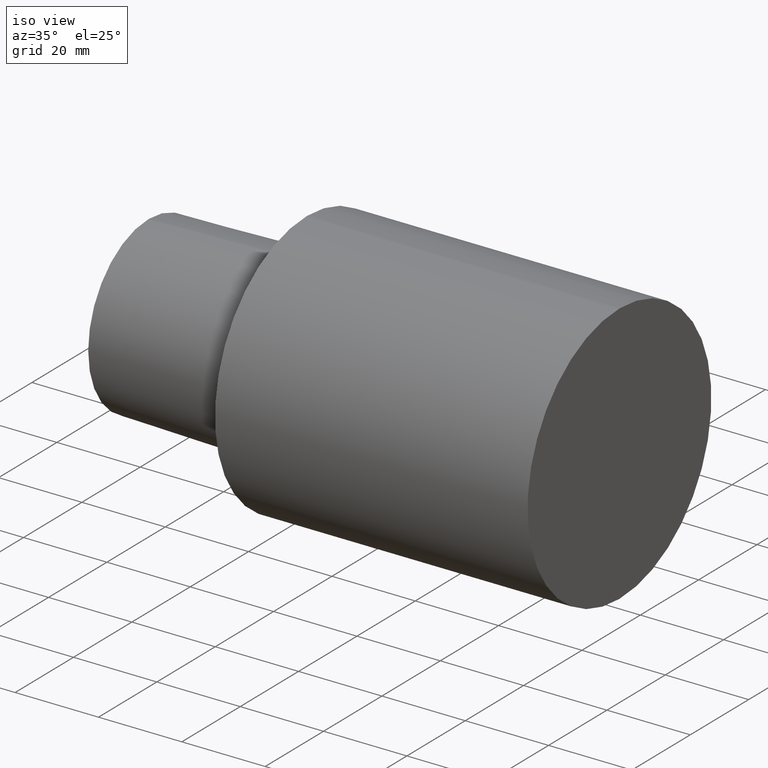
[diagram: clean part render]
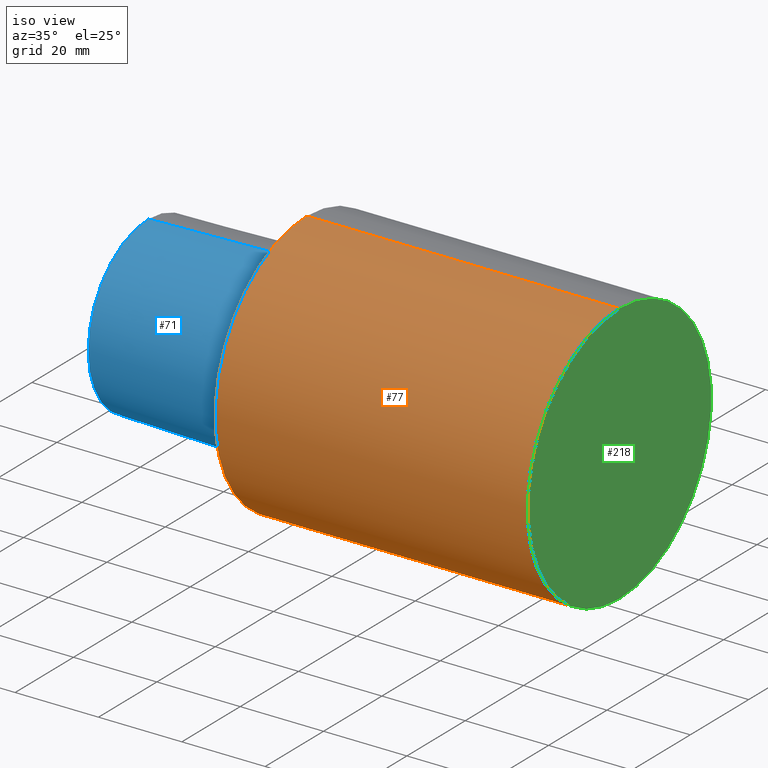
[diagram: same view with three faces highlighted in distinct colors, each labeled with its STEP entity id]
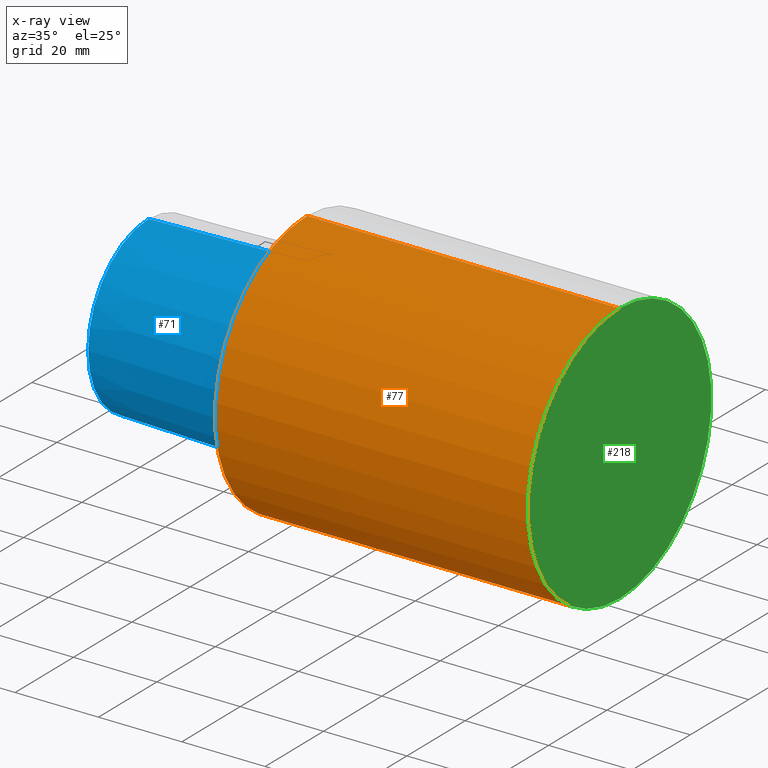
[diagram: x-ray of the same camera — body ghosted, the three highlighted faces saturated]
A machine part, iso view with three faces highlighted in distinct colors.
The next image is the same camera in x-ray (body ghosted, the three faces saturated) — at least one of them is partly hidden behind the body in this view.
Their STEP definitions:

[orange] entity #77 — the highlighted cylindrical surface (partial cylindrical patch) has radius 31.5 mm, axis along (-1, 0, 0).
#9 = CARTESIAN_POINT ( 'NONE',  ( 74.99999992349999900, 0.000000000000000000, 31.49999996787000001 ) ) ;
#11 = DIRECTION ( 'NONE',  ( -1.000000000000000000, 0.000000000000000000, 0.000000000000000000 ) ) ;
#17 = EDGE_CURVE ( 'NONE', #248, #69, #107, .T. ) ;
#20 = DIRECTION ( 'NONE',  ( -1.000000000000000000, 0.000000000000000000, 0.000000000000000000 ) ) ;
#23 = DIRECTION ( 'NONE',  ( -1.000000000000000000, 0.000000000000000000, 0.000000000000000000 ) ) ;
#32 = VERTEX_POINT ( 'NONE', #88 ) ;
#34 = ORIENTED_EDGE ( 'NONE', *, *, #41, .F. ) ;
#37 = DIRECTION ( 'NONE',  ( 0.000000000000000000, 0.000000000000000000, 1.000000000000000000 ) ) ;
#40 = DIRECTION ( 'NONE',  ( 0.000000000000000000, 0.000000000000000000, 1.000000000000000000 ) ) ;
#41 = EDGE_CURVE ( 'NONE', #209, #32, #56, .T. ) ;
#47 = AXIS2_PLACEMENT_3D ( 'NONE', #230, #192, #213 ) ;
#54 = CARTESIAN_POINT ( 'NONE',  ( 0.000000000000000000, 0.000000000000000000, 0.000000000000000000 ) ) ;
#56 = LINE ( 'NONE', #251, #59 ) ;
#59 = VECTOR ( 'NONE', #23, 1000.000000000000000 ) ;
#69 = VERTEX_POINT ( 'NONE', #154 ) ;
#70 = ORIENTED_EDGE ( 'NONE', *, *, #177, .T. ) ;
#76 = DIRECTION ( 'NONE',  ( -1.000000000000000000, 0.000000000000000000, 0.000000000000000000 ) ) ;
#77 = ADVANCED_FACE ( 'NONE', ( #131 ), #214, .T. ) ;
#86 = EDGE_CURVE ( 'NONE', #32, #69, #208, .T. ) ;
#88 = CARTESIAN_POINT ( 'NONE',  ( 0.000000000000000000, 3.857637413379370248E-15, -31.49999996787000001 ) ) ;
#107 = LINE ( 'NONE', #166, #245 ) ;
#116 = AXIS2_PLACEMENT_3D ( 'NONE', #254, #76, #37 ) ;
#131 = FACE_OUTER_BOUND ( 'NONE', #226, .T. ) ;
#146 = ORIENTED_EDGE ( 'NONE', *, *, #86, .F. ) ;
#154 = CARTESIAN_POINT ( 'NONE',  ( 0.000000000000000000, 0.000000000000000000, 31.49999996787000001 ) ) ;
#166 = CARTESIAN_POINT ( 'NONE',  ( -37.99999996124000035, 0.000000000000000000, 31.49999996787000001 ) ) ;
#177 = EDGE_CURVE ( 'NONE', #209, #248, #178, .T. ) ;
#178 = CIRCLE ( 'NONE', #47, 31.49999996787000001 ) ;
#192 = DIRECTION ( 'NONE',  ( -1.000000000000000000, 0.000000000000000000, 0.000000000000000000 ) ) ;
#208 = CIRCLE ( 'NONE', #240, 31.49999996787000001 ) ;
#209 = VERTEX_POINT ( 'NONE', #229 ) ;
#210 = ORIENTED_EDGE ( 'NONE', *, *, #17, .T. ) ;
#213 = DIRECTION ( 'NONE',  ( 0.000000000000000000, 0.000000000000000000, 1.000000000000000000 ) ) ;
#214 = CYLINDRICAL_SURFACE ( 'NONE', #116, 31.49999996787000001 ) ;
#226 = EDGE_LOOP ( 'NONE', ( #34, #70, #210, #146 ) ) ;
#229 = CARTESIAN_POINT ( 'NONE',  ( 74.99999992349999900, 3.857637413379370248E-15, -31.49999996787000001 ) ) ;
#230 = CARTESIAN_POINT ( 'NONE',  ( 74.99999992349999900, 0.000000000000000000, 0.000000000000000000 ) ) ;
#240 = AXIS2_PLACEMENT_3D ( 'NONE', #54, #20, #40 ) ;
#245 = VECTOR ( 'NONE', #11, 1000.000000000000000 ) ;
#248 = VERTEX_POINT ( 'NONE', #9 ) ;
#251 = CARTESIAN_POINT ( 'NONE',  ( -37.99999996124000035, 3.857637413379370248E-15, -31.49999996787000001 ) ) ;
#254 = CARTESIAN_POINT ( 'NONE',  ( -37.99999996124000035, 0.000000000000000000, 0.000000000000000000 ) ) ;

[blue] entity #71 — the highlighted conical surface has half-angle 1.432 deg.
#2 = DIRECTION ( 'NONE',  ( -1.000000000000000000, 0.000000000000000000, 0.000000000000000000 ) ) ;
#3 = AXIS2_PLACEMENT_3D ( 'NONE', #57, #2, #179 ) ;
#16 = ORIENTED_EDGE ( 'NONE', *, *, #199, .F. ) ;
#21 = LINE ( 'NONE', #100, #189 ) ;
#36 = DIRECTION ( 'NONE',  ( 1.000000000000000000, 0.000000000000000000, 0.000000000000000000 ) ) ;
#43 = CIRCLE ( 'NONE', #252, 21.63061196907898065 ) ;
#50 = ORIENTED_EDGE ( 'NONE', *, *, #222, .T. ) ;
#57 = CARTESIAN_POINT ( 'NONE',  ( -37.99999996124000035, 0.000000000000000000, 0.000000000000000000 ) ) ;
#58 = DIRECTION ( 'NONE',  ( -1.000000000000000000, 0.000000000000000000, 0.000000000000000000 ) ) ;
#63 = AXIS2_PLACEMENT_3D ( 'NONE', #153, #36, #99 ) ;
#71 = ADVANCED_FACE ( 'NONE', ( #114 ), #202, .T. ) ;
#91 = EDGE_LOOP ( 'NONE', ( #16, #128, #109, #50 ) ) ;
#93 = VERTEX_POINT ( 'NONE', #231 ) ;
#94 = CIRCLE ( 'NONE', #3, 20.68052847366897140 ) ;
#99 = DIRECTION ( 'NONE',  ( 0.000000000000000000, 0.000000000000000000, -1.000000000000000000 ) ) ;
#100 = CARTESIAN_POINT ( 'NONE',  ( 0.000000000000000000, 2.648985971153096932E-15, 21.63061196907898065 ) ) ;
#109 = ORIENTED_EDGE ( 'NONE', *, *, #244, .T. ) ;
#111 = VERTEX_POINT ( 'NONE', #156 ) ;
#112 = EDGE_CURVE ( 'NONE', #111, #93, #94, .T. ) ;
#114 = FACE_OUTER_BOUND ( 'NONE', #91, .T. ) ;
#128 = ORIENTED_EDGE ( 'NONE', *, *, #112, .F. ) ;
#135 = LINE ( 'NONE', #195, #243 ) ;
#147 = VERTEX_POINT ( 'NONE', #174 ) ;
#153 = CARTESIAN_POINT ( 'NONE',  ( 0.000000000000000000, 0.000000000000000000, 0.000000000000000000 ) ) ;
#156 = CARTESIAN_POINT ( 'NONE',  ( -37.99999996124000035, 0.000000000000000000, -20.68052847366897140 ) ) ;
#159 = DIRECTION ( 'NONE',  ( 0.9996875915253454759, 0.000000000000000000, -0.02499438637482059161 ) ) ;
#174 = CARTESIAN_POINT ( 'NONE',  ( 0.000000000000000000, 0.000000000000000000, -21.63061196907898065 ) ) ;
#175 = DIRECTION ( 'NONE',  ( 0.9996875915253454759, 3.060929527057623083E-18, 0.02499438637482059161 ) ) ;
#179 = DIRECTION ( 'NONE',  ( 0.000000000000000000, 0.000000000000000000, 1.000000000000000000 ) ) ;
#180 = CARTESIAN_POINT ( 'NONE',  ( 0.000000000000000000, 2.648985971153096932E-15, 21.63061196907898065 ) ) ;
#189 = VECTOR ( 'NONE', #175, 1000.000000000000114 ) ;
#195 = CARTESIAN_POINT ( 'NONE',  ( 0.000000000000000000, 0.000000000000000000, -21.63061196907898065 ) ) ;
#199 = EDGE_CURVE ( 'NONE', #93, #250, #21, .T. ) ;
#202 = CONICAL_SURFACE ( 'NONE', #63, 21.63061196907898065, 0.02499698951949481940 ) ;
#215 = DIRECTION ( 'NONE',  ( 0.000000000000000000, 0.000000000000000000, 1.000000000000000000 ) ) ;
#222 = EDGE_CURVE ( 'NONE', #147, #250, #43, .T. ) ;
#231 = CARTESIAN_POINT ( 'NONE',  ( -37.99999996124000035, 2.590810135574270981E-15, 20.68052847366897140 ) ) ;
#233 = CARTESIAN_POINT ( 'NONE',  ( 0.000000000000000000, 0.000000000000000000, 0.000000000000000000 ) ) ;
#243 = VECTOR ( 'NONE', #159, 1000.000000000000114 ) ;
#244 = EDGE_CURVE ( 'NONE', #111, #147, #135, .T. ) ;
#250 = VERTEX_POINT ( 'NONE', #180 ) ;
#252 = AXIS2_PLACEMENT_3D ( 'NONE', #233, #58, #215 ) ;

[green] entity #218 — the highlighted planar face has unit normal (-1, 0, 0).
#1 = PLANE ( 'NONE',  #87 ) ;
#5 = DIRECTION ( 'NONE',  ( 0.000000000000000000, 0.000000000000000000, 1.000000000000000000 ) ) ;
#9 = CARTESIAN_POINT ( 'NONE',  ( 74.99999992349999900, 0.000000000000000000, 31.49999996787000001 ) ) ;
#19 = DIRECTION ( 'NONE',  ( -1.000000000000000000, 0.000000000000000000, 0.000000000000000000 ) ) ;
#39 = DIRECTION ( 'NONE',  ( -1.000000000000000000, 0.000000000000000000, 0.000000000000000000 ) ) ;
#47 = AXIS2_PLACEMENT_3D ( 'NONE', #230, #192, #213 ) ;
#51 = AXIS2_PLACEMENT_3D ( 'NONE', #117, #39, #5 ) ;
#53 = ORIENTED_EDGE ( 'NONE', *, *, #144, .F. ) ;
#72 = EDGE_LOOP ( 'NONE', ( #53, #149 ) ) ;
#87 = AXIS2_PLACEMENT_3D ( 'NONE', #191, #19, #155 ) ;
#113 = FACE_OUTER_BOUND ( 'NONE', #72, .T. ) ;
#117 = CARTESIAN_POINT ( 'NONE',  ( 74.99999992349999900, 0.000000000000000000, 0.000000000000000000 ) ) ;
#144 = EDGE_CURVE ( 'NONE', #248, #209, #234, .T. ) ;
#149 = ORIENTED_EDGE ( 'NONE', *, *, #177, .F. ) ;
#155 = DIRECTION ( 'NONE',  ( 0.000000000000000000, 0.000000000000000000, 1.000000000000000000 ) ) ;
#177 = EDGE_CURVE ( 'NONE', #209, #248, #178, .T. ) ;
#178 = CIRCLE ( 'NONE', #47, 31.49999996787000001 ) ;
#191 = CARTESIAN_POINT ( 'NONE',  ( 74.99999992349999900, 0.000000000000000000, 0.000000000000000000 ) ) ;
#192 = DIRECTION ( 'NONE',  ( -1.000000000000000000, 0.000000000000000000, 0.000000000000000000 ) ) ;
#209 = VERTEX_POINT ( 'NONE', #229 ) ;
#213 = DIRECTION ( 'NONE',  ( 0.000000000000000000, 0.000000000000000000, 1.000000000000000000 ) ) ;
#218 = ADVANCED_FACE ( 'NONE', ( #113 ), #1, .F. ) ;
#229 = CARTESIAN_POINT ( 'NONE',  ( 74.99999992349999900, 3.857637413379370248E-15, -31.49999996787000001 ) ) ;
#230 = CARTESIAN_POINT ( 'NONE',  ( 74.99999992349999900, 0.000000000000000000, 0.000000000000000000 ) ) ;
#234 = CIRCLE ( 'NONE', #51, 31.49999996787000001 ) ;
#248 = VERTEX_POINT ( 'NONE', #9 ) ;